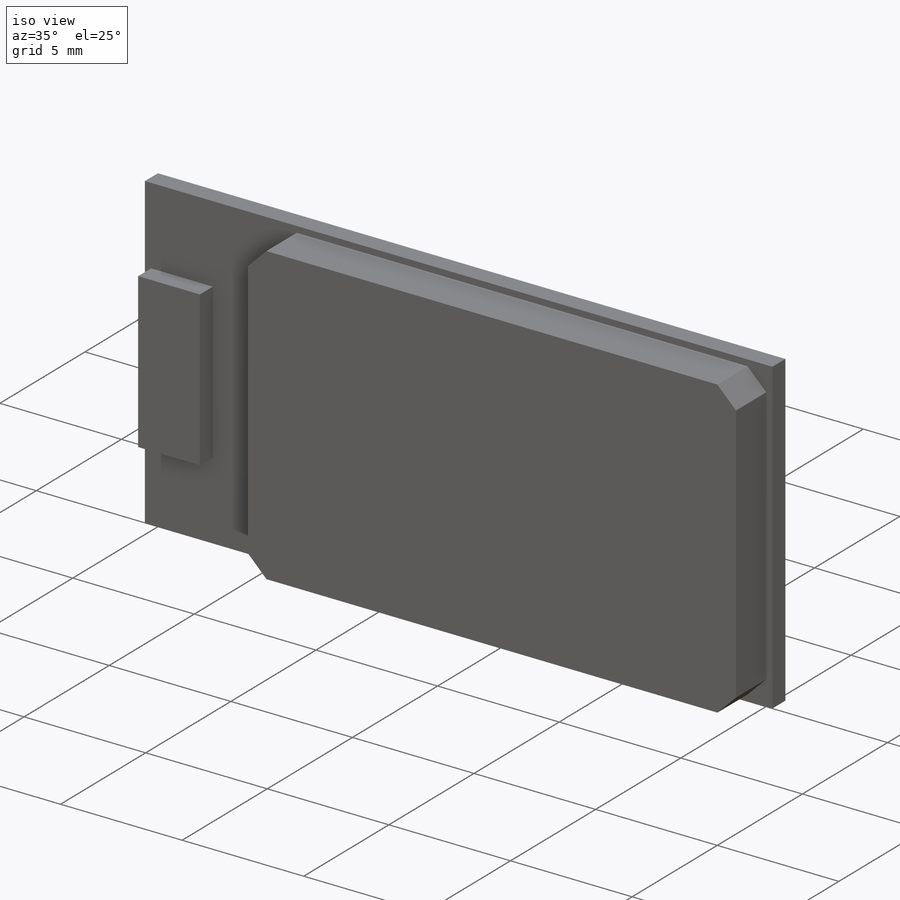
[diagram: iso view]
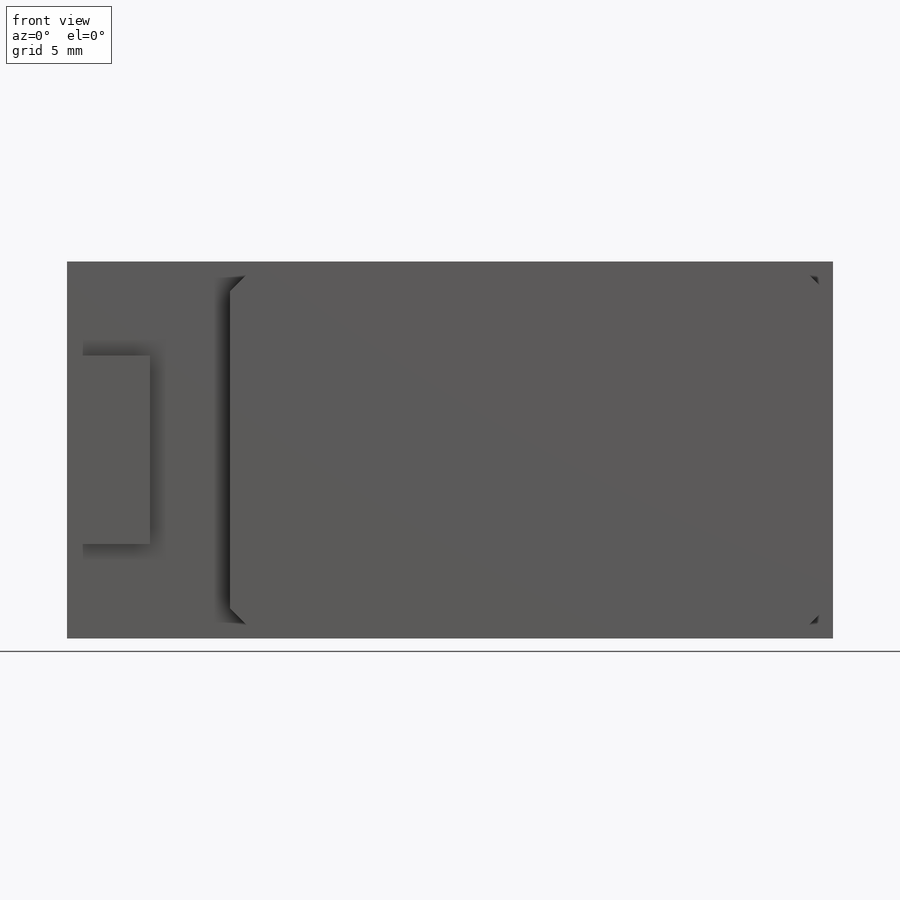
[diagram: front view]
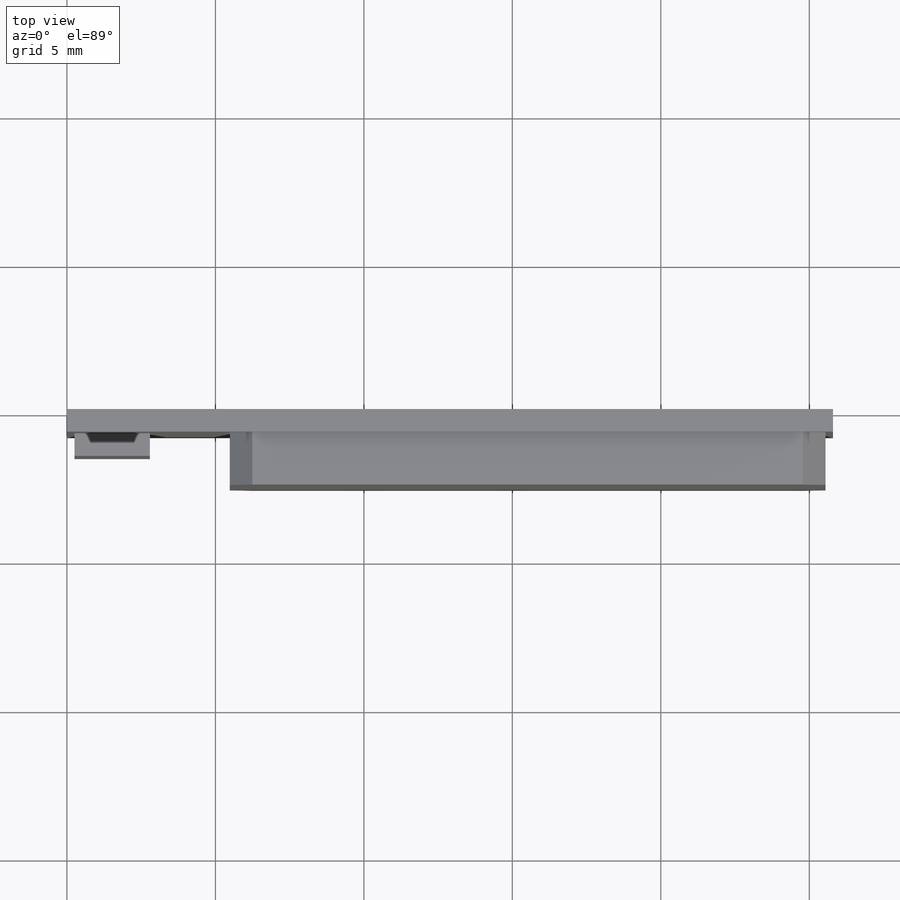
[diagram: top view]
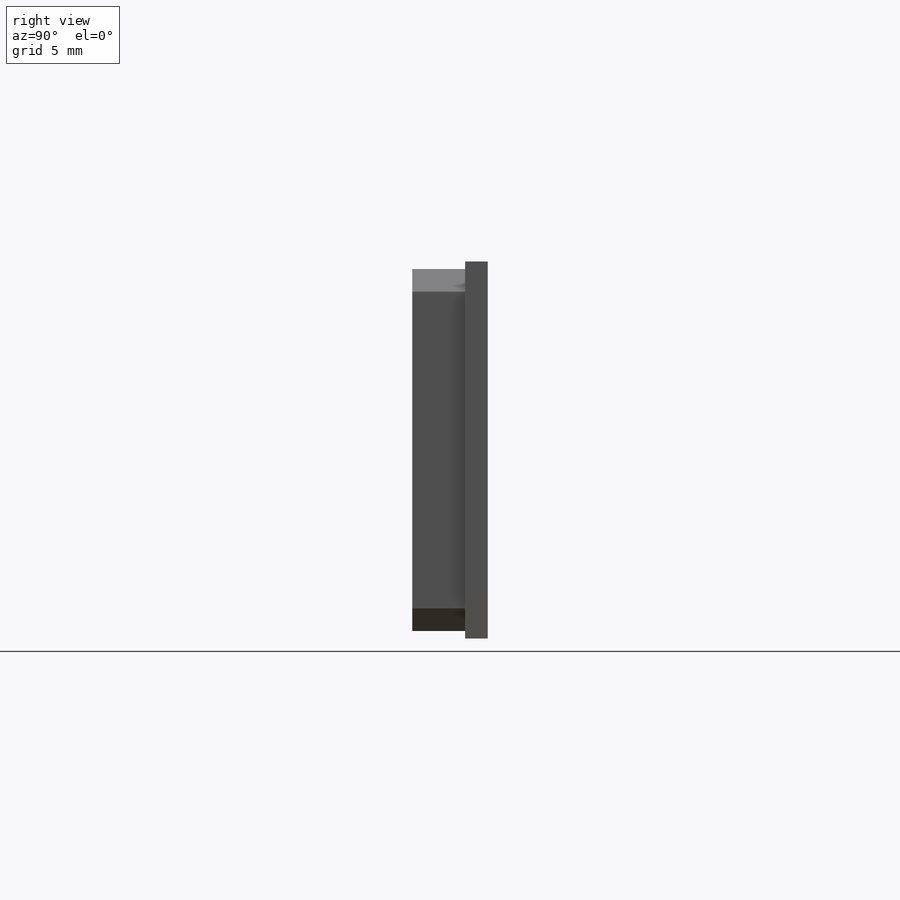
[diagram: right view]
SOLIDWORKS PART (.sldprt)
format: sldprt  version: not decoded by parser v0  size: 177,664 bytes
history: native  units: mm
features: sketch x3, extrude x3, material x1, chamfer x1 (+13 scaffold rows collapsed)
feature tree (21):
  scaffold x13  (default folders/planes/origin — collapsed)
  material  "Material <not specified>"
  sketch  "Sketch1"  dims[D1=12.7mm D2=25.8mm]
  extrude  "Boss-Extrude1"  Depth=0.762mm
  sketch  "Sketch2"  dims[D1=0.254mm D2=0.254mm D3=20.066mm D4=12.192mm]
  extrude  "Boss-Extrude2"  Depth=1.778mm
  chamfer  "Chamfer1"  Distance=0.762mm Angle=45deg
  sketch  "Sketch3"  dims[D1=0.254mm D2=6.35mm D3=2.54mm]
  extrude  "Boss-Extrude3"  Depth=0.762mm
decode coverage: 7 of 7 modeling features carry decoded parameters
note: suppression state not decoded; provenance and decode notes live in map.json
